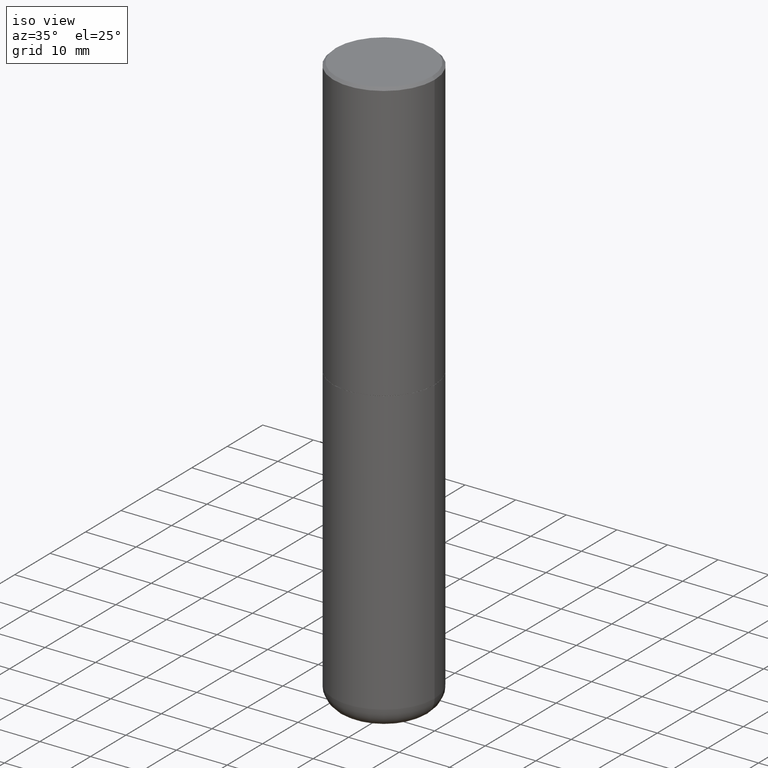
[diagram: clean part render]
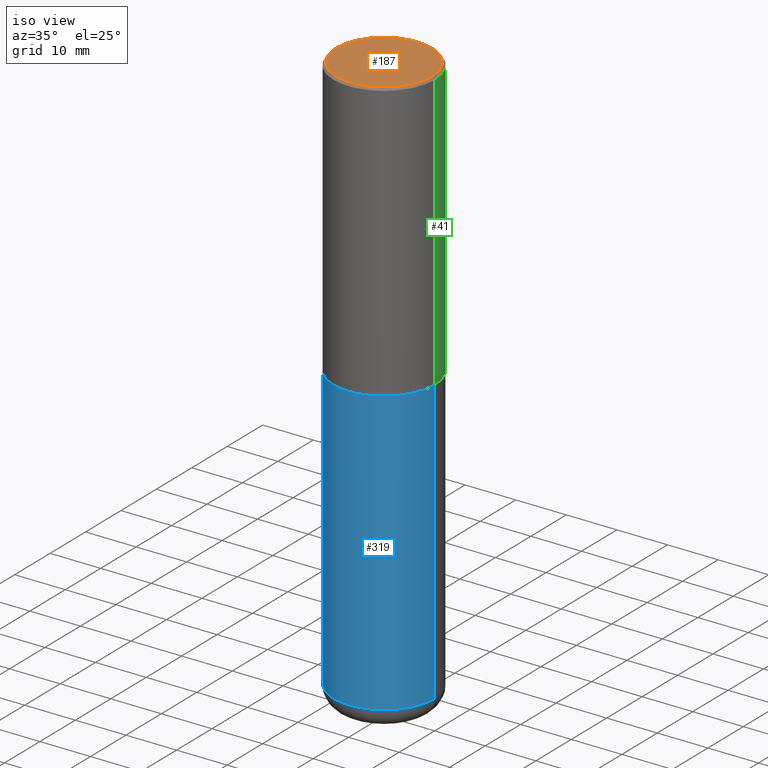
[diagram: same view with three faces highlighted in distinct colors, each labeled with its STEP entity id]
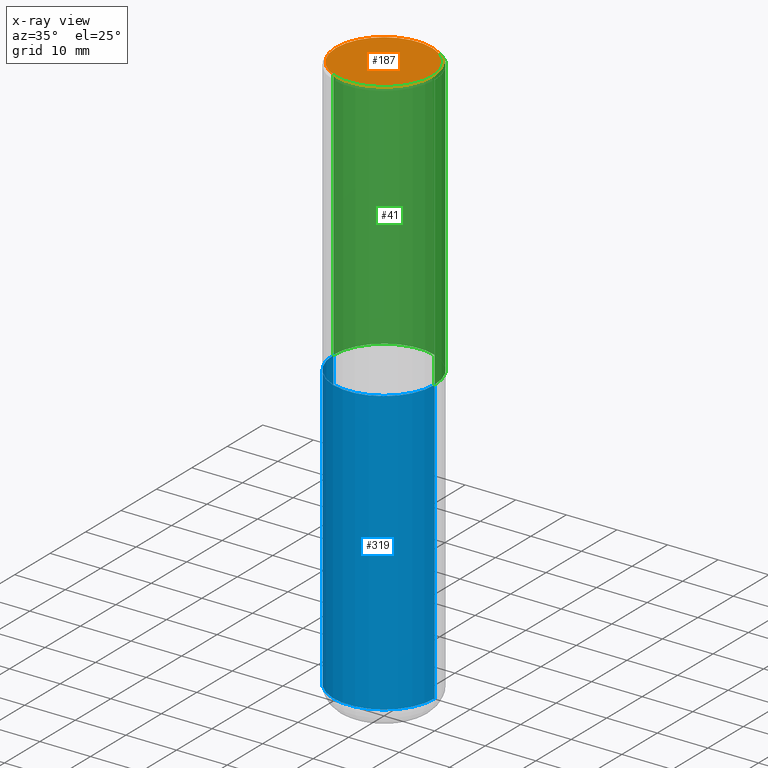
[diagram: x-ray of the same camera — body ghosted, the three highlighted faces saturated]
A machine part, iso view with three faces highlighted in distinct colors.
The next image is the same camera in x-ray (body ghosted, the three faces saturated) — at least one of them is partly hidden behind the body in this view.
Their STEP definitions:

[orange] entity #187 — the highlighted planar face has unit normal (0, -0, -1).
#6 = CIRCLE ( 'NONE', #51, 0.3737000000000000322 ) ;
#36 = EDGE_CURVE ( 'NONE', #159, #100, #89, .T. ) ;
#51 = AXIS2_PLACEMENT_3D ( 'NONE', #254, #390, #168 ) ;
#89 = CIRCLE ( 'NONE', #247, 0.3737000000000000322 ) ;
#100 = VERTEX_POINT ( 'NONE', #343 ) ;
#132 = DIRECTION ( 'NONE',  ( 1.000000000000000000, -6.982962677686266711E-15, 4.875705233642009010E-29 ) ) ;
#159 = VERTEX_POINT ( 'NONE', #268 ) ;
#168 = DIRECTION ( 'NONE',  ( 1.000000000000000000, -6.982962677686266711E-15, 4.875705233642009010E-29 ) ) ;
#175 = DIRECTION ( 'NONE',  ( 2.438088387897960049E-29, -3.491481338843145188E-15, -1.000000000000000000 ) ) ;
#187 = ADVANCED_FACE ( 'NONE', ( #375 ), #312, .F. ) ;
#223 = EDGE_LOOP ( 'NONE', ( #251, #363 ) ) ;
#229 = AXIS2_PLACEMENT_3D ( 'NONE', #271, #175, #411 ) ;
#247 = AXIS2_PLACEMENT_3D ( 'NONE', #362, #287, #132 ) ;
#251 = ORIENTED_EDGE ( 'NONE', *, *, #410, .T. ) ;
#254 = CARTESIAN_POINT ( 'NONE',  ( 1.565777121502829671E-45, -2.235514755570671047E-31, -6.402768735150616610E-17 ) ) ;
#268 = CARTESIAN_POINT ( 'NONE',  ( 0.3737000000000000322, -2.667287895133368753E-15, -6.402768735148772648E-17 ) ) ;
#271 = CARTESIAN_POINT ( 'NONE',  ( 2.609533152651357803E-15, 0.3737000000000000322, -1.336780420001436835E-15 ) ) ;
#287 = DIRECTION ( 'NONE',  ( -2.445468806185136597E-29, 3.491481338843145583E-15, 1.000000000000000000 ) ) ;
#312 = PLANE ( 'NONE',  #229 ) ;
#343 = CARTESIAN_POINT ( 'NONE',  ( -0.3737000000000000322, 2.644447966039789058E-15, -6.402768735152454409E-17 ) ) ;
#362 = CARTESIAN_POINT ( 'NONE',  ( 1.565777121502829671E-45, -2.235514755570671047E-31, -6.402768735150616610E-17 ) ) ;
#363 = ORIENTED_EDGE ( 'NONE', *, *, #36, .T. ) ;
#375 = FACE_OUTER_BOUND ( 'NONE', #223, .T. ) ;
#390 = DIRECTION ( 'NONE',  ( -2.445468806185136597E-29, 3.491481338843145583E-15, 1.000000000000000000 ) ) ;
#410 = EDGE_CURVE ( 'NONE', #100, #159, #6, .T. ) ;
#411 = DIRECTION ( 'NONE',  ( -1.000000000000000000, 6.982962677686265922E-15, -4.876176775795935793E-29 ) ) ;

[blue] entity #319 — the highlighted cylindrical surface (partial cylindrical patch) has radius 10 mm, axis along (-0, 0, 1).
#8 = AXIS2_PLACEMENT_3D ( 'NONE', #239, #235, #83 ) ;
#22 = DIRECTION ( 'NONE',  ( -2.445468806185136597E-29, 3.491481338843145583E-15, 1.000000000000000000 ) ) ;
#23 = VECTOR ( 'NONE', #320, 39.37007874015748143 ) ;
#26 = LINE ( 'NONE', #150, #304 ) ;
#46 = CARTESIAN_POINT ( 'NONE',  ( -0.3937000000000001054, -1.246071584819091497E-14, -4.370099999999998985 ) ) ;
#57 = CARTESIAN_POINT ( 'NONE',  ( 1.068694322990966450E-28, -1.525812259887842897E-14, -4.370099999999998985 ) ) ;
#66 = DIRECTION ( 'NONE',  ( 1.000000000000000000, -6.982962677686265922E-15, 4.876176775795935793E-29 ) ) ;
#81 = DIRECTION ( 'NONE',  ( 1.000000000000000000, -6.982962677686262766E-15, 0.000000000000000000 ) ) ;
#83 = DIRECTION ( 'NONE',  ( 1.000000000000000000, -6.982962677686265133E-15, 0.000000000000000000 ) ) ;
#108 = ORIENTED_EDGE ( 'NONE', *, *, #274, .F. ) ;
#119 = DIRECTION ( 'NONE',  ( -2.445468806185136877E-29, 3.491481338843145188E-15, 1.000000000000000000 ) ) ;
#121 = FACE_OUTER_BOUND ( 'NONE', #233, .T. ) ;
#124 = CIRCLE ( 'NONE', #356, 0.3937000000000000499 ) ;
#125 = CARTESIAN_POINT ( 'NONE',  ( 0.000000000000000000, 0.000000000000000000, 0.000000000000000000 ) ) ;
#126 = CARTESIAN_POINT ( 'NONE',  ( -0.3937000000000000499, -8.611881394317173410E-15, -2.165399999999999547 ) ) ;
#144 = EDGE_CURVE ( 'NONE', #402, #258, #124, .T. ) ;
#150 = CARTESIAN_POINT ( 'NONE',  ( 0.3937000000000000499, -2.749192406205083217E-15, 1.919750796630860172E-29 ) ) ;
#153 = CARTESIAN_POINT ( 'NONE',  ( -0.3937000000000000499, 2.797406750687514786E-15, -1.936584745033356735E-29 ) ) ;
#165 = EDGE_CURVE ( 'NONE', #275, #370, #365, .T. ) ;
#184 = CARTESIAN_POINT ( 'NONE',  ( 0.3937000000000000499, -1.030964609733602906E-14, -2.165399999999999547 ) ) ;
#233 = EDGE_LOOP ( 'NONE', ( #108, #324, #334, #322 ) ) ;
#235 = DIRECTION ( 'NONE',  ( -2.445468806185136597E-29, 3.491481338843145583E-15, 1.000000000000000000 ) ) ;
#239 = CARTESIAN_POINT ( 'NONE',  ( 5.295418152913293224E-29, -7.560453691130945845E-15, -2.165399999999999547 ) ) ;
#245 = EDGE_CURVE ( 'NONE', #258, #370, #26, .T. ) ;
#258 = VERTEX_POINT ( 'NONE', #387 ) ;
#274 = EDGE_CURVE ( 'NONE', #402, #275, #285, .T. ) ;
#275 = VERTEX_POINT ( 'NONE', #126 ) ;
#285 = LINE ( 'NONE', #153, #23 ) ;
#304 = VECTOR ( 'NONE', #119, 39.37007874015748143 ) ;
#316 = DIRECTION ( 'NONE',  ( -2.445468806185136597E-29, 3.491481338843145583E-15, 1.000000000000000000 ) ) ;
#319 = ADVANCED_FACE ( 'NONE', ( #121 ), #346, .T. ) ;
#320 = DIRECTION ( 'NONE',  ( -2.445468806185136877E-29, 3.491481338843145188E-15, 1.000000000000000000 ) ) ;
#322 = ORIENTED_EDGE ( 'NONE', *, *, #165, .F. ) ;
#324 = ORIENTED_EDGE ( 'NONE', *, *, #144, .T. ) ;
#334 = ORIENTED_EDGE ( 'NONE', *, *, #245, .T. ) ;
#346 = CYLINDRICAL_SURFACE ( 'NONE', #364, 0.3937000000000000499 ) ;
#356 = AXIS2_PLACEMENT_3D ( 'NONE', #57, #22, #81 ) ;
#364 = AXIS2_PLACEMENT_3D ( 'NONE', #125, #316, #66 ) ;
#365 = CIRCLE ( 'NONE', #8, 0.3937000000000000499 ) ;
#370 = VERTEX_POINT ( 'NONE', #184 ) ;
#387 = CARTESIAN_POINT ( 'NONE',  ( 0.3937000000000001054, -1.800731500508351219E-14, -4.370099999999998985 ) ) ;
#402 = VERTEX_POINT ( 'NONE', #46 ) ;

[green] entity #41 — the highlighted cylindrical surface (partial cylindrical patch) has radius 10 mm, axis along (-0, 0, 1).
#13 = EDGE_CURVE ( 'NONE', #336, #405, #40, .T. ) ;
#28 = LINE ( 'NONE', #413, #381 ) ;
#40 = CIRCLE ( 'NONE', #220, 0.3937000000000000499 ) ;
#41 = ADVANCED_FACE ( 'NONE', ( #196 ), #180, .T. ) ;
#55 = CARTESIAN_POINT ( 'NONE',  ( 4.890937612370294178E-31, -6.982962677686321191E-17, -0.02000000000000008715 ) ) ;
#61 = EDGE_CURVE ( 'NONE', #139, #336, #28, .T. ) ;
#78 = DIRECTION ( 'NONE',  ( -2.445468806185136597E-29, 3.491481338843145583E-15, 1.000000000000000000 ) ) ;
#91 = DIRECTION ( 'NONE',  ( 1.000000000000000000, -6.982962677686269077E-15, 0.000000000000000000 ) ) ;
#102 = VECTOR ( 'NONE', #222, 39.37007874015748143 ) ;
#118 = CARTESIAN_POINT ( 'NONE',  ( 0.000000000000000000, 0.000000000000000000, 0.000000000000000000 ) ) ;
#120 = ORIENTED_EDGE ( 'NONE', *, *, #360, .T. ) ;
#139 = VERTEX_POINT ( 'NONE', #151 ) ;
#141 = ORIENTED_EDGE ( 'NONE', *, *, #61, .F. ) ;
#142 = CIRCLE ( 'NONE', #185, 0.3937000000000002720 ) ;
#146 = AXIS2_PLACEMENT_3D ( 'NONE', #118, #78, #201 ) ;
#151 = CARTESIAN_POINT ( 'NONE',  ( 0.3937000000000002720, -1.030615461599718763E-14, -2.164399999999999658 ) ) ;
#152 = LINE ( 'NONE', #188, #102 ) ;
#180 = CYLINDRICAL_SURFACE ( 'NONE', #146, 0.3937000000000001609 ) ;
#185 = AXIS2_PLACEMENT_3D ( 'NONE', #416, #277, #91 ) ;
#188 = CARTESIAN_POINT ( 'NONE',  ( -0.3937000000000001609, 2.797406750687515575E-15, -1.936584745033357296E-29 ) ) ;
#193 = VERTEX_POINT ( 'NONE', #203 ) ;
#196 = FACE_OUTER_BOUND ( 'NONE', #227, .T. ) ;
#201 = DIRECTION ( 'NONE',  ( 1.000000000000000000, -6.982962677686266711E-15, 4.876176775795935793E-29 ) ) ;
#203 = CARTESIAN_POINT ( 'NONE',  ( -0.3937000000000003830, -1.015989167596963746E-15, -2.164399999999999658 ) ) ;
#220 = AXIS2_PLACEMENT_3D ( 'NONE', #55, #267, #269 ) ;
#222 = DIRECTION ( 'NONE',  ( -2.445468806185136877E-29, 3.491481338843145188E-15, 1.000000000000000000 ) ) ;
#227 = EDGE_LOOP ( 'NONE', ( #299, #120, #367, #141 ) ) ;
#248 = CARTESIAN_POINT ( 'NONE',  ( 0.3937000000000000499, -2.770807688499515734E-15, -0.02000000000000008715 ) ) ;
#260 = CARTESIAN_POINT ( 'NONE',  ( -0.3937000000000000499, 2.679362779428219918E-15, -0.02000000000000008715 ) ) ;
#267 = DIRECTION ( 'NONE',  ( -2.445468806185136597E-29, 3.491481338843145583E-15, 1.000000000000000000 ) ) ;
#269 = DIRECTION ( 'NONE',  ( 1.000000000000000000, -6.982962677686265922E-15, 0.000000000000000000 ) ) ;
#277 = DIRECTION ( 'NONE',  ( -2.445468806185136597E-29, 3.491481338843145583E-15, 1.000000000000000000 ) ) ;
#296 = EDGE_CURVE ( 'NONE', #139, #193, #142, .T. ) ;
#299 = ORIENTED_EDGE ( 'NONE', *, *, #296, .T. ) ;
#302 = DIRECTION ( 'NONE',  ( -2.445468806185136877E-29, 3.491481338843145188E-15, 1.000000000000000000 ) ) ;
#336 = VERTEX_POINT ( 'NONE', #248 ) ;
#360 = EDGE_CURVE ( 'NONE', #193, #405, #152, .T. ) ;
#367 = ORIENTED_EDGE ( 'NONE', *, *, #13, .F. ) ;
#381 = VECTOR ( 'NONE', #302, 39.37007874015748143 ) ;
#405 = VERTEX_POINT ( 'NONE', #260 ) ;
#413 = CARTESIAN_POINT ( 'NONE',  ( 0.3937000000000001609, -2.749192406205084400E-15, 1.919750796630860732E-29 ) ) ;
#416 = CARTESIAN_POINT ( 'NONE',  ( 5.292972684107107621E-29, -7.556962209792102838E-15, -2.164399999999999658 ) ) ;